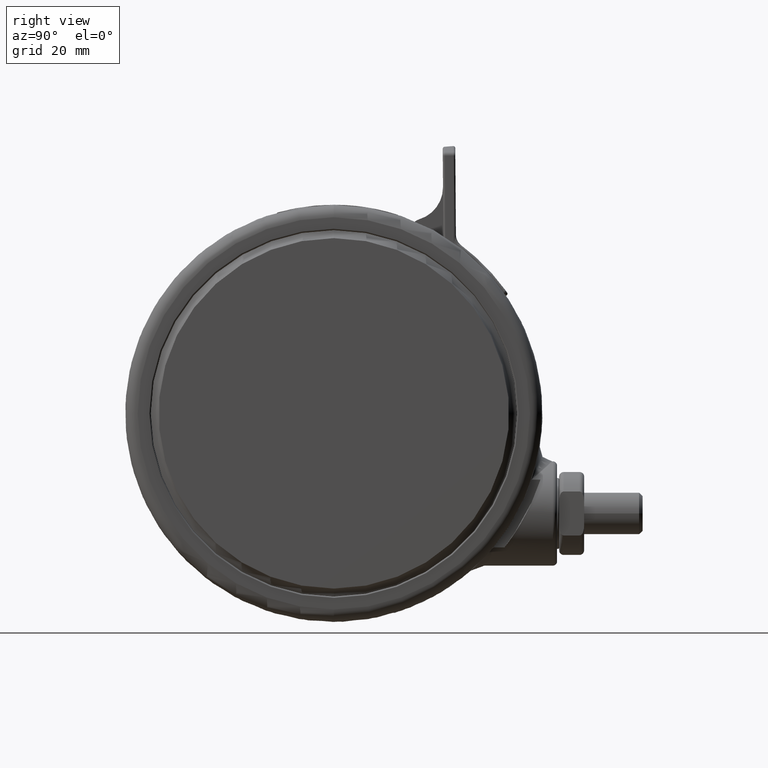
[diagram: clean part render]
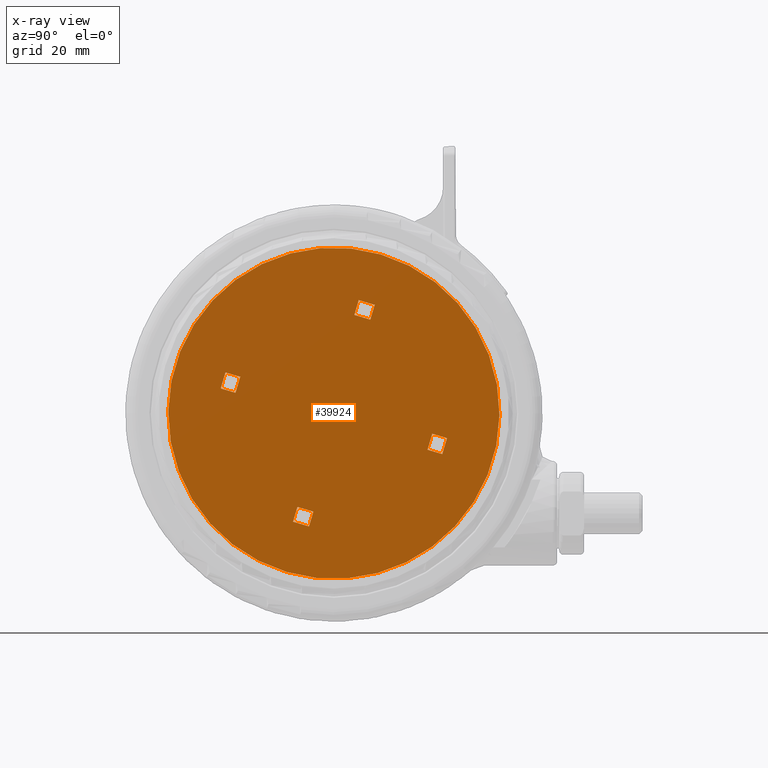
[diagram: x-ray — body ghosted, one internal face saturated and labeled with its STEP entity id]
A machine part, right view, then the same camera in x-ray: the body is ghosted and one INTERNAL B-rep face — a face not visible from any outside direction — is saturated and labeled: STEP entity #39924.
In plain terms, the highlighted planar face has unit normal (-1, 0, -0).
Its self-contained STEP definition (entity closure, byte-faithful):
#11 = EDGE_CURVE ( 'NONE', #14990, #23831, #12457, .T. ) ;
#686 = EDGE_LOOP ( 'NONE', ( #11510, #16779 ) ) ;
#1556 = VECTOR ( 'NONE', #47288, 1000.000000000000000 ) ;
#1924 = CARTESIAN_POINT ( 'NONE',  ( -25.98941694533791500, 9.789801164547872900, -46.79999999999984100 ) ) ;
#2155 = LINE ( 'NONE', #19273, #39902 ) ;
#2303 = CARTESIAN_POINT ( 'NONE',  ( 0.5683949185580011700, 1.917531542519552700, -46.79999999999984100 ) ) ;
#2382 = VECTOR ( 'NONE', #8832, 1000.000000000000000 ) ;
#2449 = CARTESIAN_POINT ( 'NONE',  ( -23.57877342879271500, 4.903207480176448900, -46.79999999999984100 ) ) ;
#2923 = VERTEX_POINT ( 'NONE', #23008 ) ;
#3072 = VECTOR ( 'NONE', #8251, 1000.000000000000000 ) ;
#4996 = VERTEX_POINT ( 'NONE', #45840 ) ;
#5125 = PLANE ( 'NONE',  #31139 ) ;
#5269 = AXIS2_PLACEMENT_3D ( 'NONE', #16384, #42740, #20143 ) ;
#5834 = CARTESIAN_POINT ( 'NONE',  ( 38.06300111901330800, -11.28263913337620200, -46.79999999999984100 ) ) ;
#6032 = DIRECTION ( 'NONE',  ( -0.9587657712597779100, 0.2841974592790074100, 1.820777459642571100E-016 ) ) ;
#6276 = VERTEX_POINT ( 'NONE', #6908 ) ;
#6908 = CARTESIAN_POINT ( 'NONE',  ( 8.738270565215499300, 22.44198359167674500, -46.79999999999984800 ) ) ;
#7834 = EDGE_CURVE ( 'NONE', #17533, #14990, #37485, .T. ) ;
#7921 = FACE_BOUND ( 'NONE', #41780, .T. ) ;
#7954 = VECTOR ( 'NONE', #27648, 1000.000000000000100 ) ;
#8251 = DIRECTION ( 'NONE',  ( -0.2841974592789973700, -0.9587657712597810200, 2.950076306839567200E-016 ) ) ;
#8383 = CARTESIAN_POINT ( 'NONE',  ( -0.5683949185580016200, -1.917531542519567400, -46.79999999999984100 ) ) ;
#8579 = EDGE_LOOP ( 'NONE', ( #9402, #48411, #25962, #44209 ) ) ;
#8832 = DIRECTION ( 'NONE',  ( 0.2841974592789973700, 0.9587657712597810200, 6.639309347787825500E-017 ) ) ;
#8960 = CARTESIAN_POINT ( 'NONE',  ( -9.789801164547789400, -25.98941694533794700, -46.79999999999984100 ) ) ;
#9402 = ORIENTED_EDGE ( 'NONE', *, *, #12400, .T. ) ;
#9699 = EDGE_CURVE ( 'NONE', #34079, #6276, #13142, .T. ) ;
#10397 = ORIENTED_EDGE ( 'NONE', *, *, #43452, .T. ) ;
#10776 = DIRECTION ( 'NONE',  ( 0.9587657712597810200, -0.2841974592789973700, -1.377383883340829000E-018 ) ) ;
#11057 = DIRECTION ( 'NONE',  ( -0.9587657712597810200, 0.2841974592789973700, 1.377383883340829000E-018 ) ) ;
#11246 = LINE ( 'NONE', #24828, #18902 ) ;
#11510 = ORIENTED_EDGE ( 'NONE', *, *, #15418, .T. ) ;
#11738 = LINE ( 'NONE', #33324, #30618 ) ;
#11758 = EDGE_CURVE ( 'NONE', #6276, #38226, #12453, .T. ) ;
#12400 = EDGE_CURVE ( 'NONE', #43203, #2923, #47733, .T. ) ;
#12453 = LINE ( 'NONE', #37598, #41304 ) ;
#12457 = LINE ( 'NONE', #46415, #2382 ) ;
#12848 = CARTESIAN_POINT ( 'NONE',  ( -4.903207480176375200, -23.57877342879274400, -46.79999999999984100 ) ) ;
#13142 = LINE ( 'NONE', #42040, #3072 ) ;
#13439 = ORIENTED_EDGE ( 'NONE', *, *, #38737, .F. ) ;
#13727 = DIRECTION ( 'NONE',  ( 0.9587657712597800200, -0.2841974592790007500, 1.793229781975770600E-016 ) ) ;
#14048 = EDGE_LOOP ( 'NONE', ( #31405, #22844, #10397, #20512 ) ) ;
#14990 = VERTEX_POINT ( 'NONE', #8960 ) ;
#15418 = EDGE_CURVE ( 'NONE', #25225, #18137, #45573, .T. ) ;
#15467 = VECTOR ( 'NONE', #31004, 1000.000000000000000 ) ;
#15673 = CARTESIAN_POINT ( 'NONE',  ( 27.12620678245384900, -5.954738079508951300, -46.79999999999984100 ) ) ;
#15826 = CARTESIAN_POINT ( 'NONE',  ( -7.872269622028227300, -26.55781186389594200, -46.79999999999984100 ) ) ;
#15927 = EDGE_CURVE ( 'NONE', #48650, #22526, #46709, .T. ) ;
#16117 = EDGE_LOOP ( 'NONE', ( #38918, #26920, #22788, #13439 ) ) ;
#16384 = CARTESIAN_POINT ( 'NONE',  ( 6.085156290360790700E-017, -7.409851091886253300E-015, -46.79999999999984100 ) ) ;
#16766 = VERTEX_POINT ( 'NONE', #27315 ) ;
#16779 = ORIENTED_EDGE ( 'NONE', *, *, #18086, .T. ) ;
#17471 = DIRECTION ( 'NONE',  ( 3.380642383533773200E-017, 2.202247500052102700E-016, 1.000000000000000000 ) ) ;
#17533 = VERTEX_POINT ( 'NONE', #39922 ) ;
#17551 = VECTOR ( 'NONE', #29117, 1000.000000000000000 ) ;
#17621 = CARTESIAN_POINT ( 'NONE',  ( -38.06300111901330800, 11.28263913337618400, -46.79999999999984100 ) ) ;
#17963 = FACE_BOUND ( 'NONE', #8579, .T. ) ;
#18086 = EDGE_CURVE ( 'NONE', #18137, #25225, #34733, .T. ) ;
#18133 = LINE ( 'NONE', #41705, #37023 ) ;
#18137 = VERTEX_POINT ( 'NONE', #17621 ) ;
#18733 = DIRECTION ( 'NONE',  ( -0.2841974592790074100, -0.9587657712597779100, 1.143072686030392600E-016 ) ) ;
#18902 = VECTOR ( 'NONE', #6032, 1000.000000000000100 ) ;
#19052 = VECTOR ( 'NONE', #36429, 1000.000000000000000 ) ;
#19133 = FACE_BOUND ( 'NONE', #16117, .T. ) ;
#19273 = CARTESIAN_POINT ( 'NONE',  ( -1.917531542519562000, 0.5683949185579876300, -46.79999999999984100 ) ) ;
#19365 = EDGE_CURVE ( 'NONE', #45657, #4996, #23438, .T. ) ;
#19744 = CARTESIAN_POINT ( 'NONE',  ( -23.57877342879271500, 4.903207480176448900, -46.79999999999984100 ) ) ;
#20060 = CARTESIAN_POINT ( 'NONE',  ( -27.12620678245390200, 5.954738079508747900, -46.79999999999984100 ) ) ;
#20143 = DIRECTION ( 'NONE',  ( 0.9587657712597810200, -0.2841974592789973700, 0.0000000000000000000 ) ) ;
#20512 = ORIENTED_EDGE ( 'NONE', *, *, #31484, .F. ) ;
#21703 = EDGE_CURVE ( 'NONE', #28695, #34079, #30094, .T. ) ;
#22526 = VERTEX_POINT ( 'NONE', #19744 ) ;
#22788 = ORIENTED_EDGE ( 'NONE', *, *, #11758, .T. ) ;
#22844 = ORIENTED_EDGE ( 'NONE', *, *, #11, .T. ) ;
#23008 = CARTESIAN_POINT ( 'NONE',  ( 25.98941694533785800, -9.789801164548073600, -46.79999999999984100 ) ) ;
#23018 = VERTEX_POINT ( 'NONE', #30441 ) ;
#23438 = LINE ( 'NONE', #2303, #32325 ) ;
#23780 = ORIENTED_EDGE ( 'NONE', *, *, #15927, .F. ) ;
#23831 = VERTEX_POINT ( 'NONE', #30056 ) ;
#24652 = CARTESIAN_POINT ( 'NONE',  ( 5.954738079508664400, 27.12620678245392000, -46.79999999999984800 ) ) ;
#24828 = CARTESIAN_POINT ( 'NONE',  ( 0.5683949185580151600, 1.917531542519548700, -46.79999999999984100 ) ) ;
#25225 = VERTEX_POINT ( 'NONE', #5834 ) ;
#25455 = CARTESIAN_POINT ( 'NONE',  ( 1.917531542519562000, -0.5683949185580023900, -46.79999999999984100 ) ) ;
#25962 = ORIENTED_EDGE ( 'NONE', *, *, #44495, .T. ) ;
#26540 = EDGE_CURVE ( 'NONE', #4996, #22526, #43247, .T. ) ;
#26886 = DIRECTION ( 'NONE',  ( -0.2841974592789973700, -0.9587657712597810200, 2.950076306839567200E-016 ) ) ;
#26920 = ORIENTED_EDGE ( 'NONE', *, *, #9699, .T. ) ;
#27315 = CARTESIAN_POINT ( 'NONE',  ( 22.44198359167667800, -8.738270565215744400, -46.79999999999984100 ) ) ;
#27648 = DIRECTION ( 'NONE',  ( 0.2841974592790074100, 0.9587657712597779100, -1.143072686030392600E-016 ) ) ;
#27726 = VECTOR ( 'NONE', #18733, 1000.000000000000100 ) ;
#27989 = FACE_BOUND ( 'NONE', #14048, .T. ) ;
#28031 = LINE ( 'NONE', #39000, #7954 ) ;
#28695 = VERTEX_POINT ( 'NONE', #24652 ) ;
#28907 = VECTOR ( 'NONE', #10776, 1000.000000000000000 ) ;
#29117 = DIRECTION ( 'NONE',  ( 0.2841974592789973700, 0.9587657712597810200, 6.639309347787825500E-017 ) ) ;
#29528 = EDGE_CURVE ( 'NONE', #43203, #23018, #11246, .T. ) ;
#30056 = CARTESIAN_POINT ( 'NONE',  ( -8.738270565215499300, -22.44198359167676000, -46.79999999999984100 ) ) ;
#30094 = LINE ( 'NONE', #33379, #28907 ) ;
#30123 = CARTESIAN_POINT ( 'NONE',  ( 15.04781476309615600, -46.70228335804925000, -46.79999999999984100 ) ) ;
#30441 = CARTESIAN_POINT ( 'NONE',  ( 23.57877342879266900, -4.903207480176623000, -46.79999999999984100 ) ) ;
#30476 = ORIENTED_EDGE ( 'NONE', *, *, #19365, .T. ) ;
#30601 = CARTESIAN_POINT ( 'NONE',  ( 4.903207480176375200, 23.57877342879273300, -46.79999999999984800 ) ) ;
#30618 = VECTOR ( 'NONE', #33168, 1000.000000000000000 ) ;
#30673 = EDGE_CURVE ( 'NONE', #48650, #45657, #11738, .T. ) ;
#30987 = VERTEX_POINT ( 'NONE', #12848 ) ;
#31004 = DIRECTION ( 'NONE',  ( 0.9587657712597800200, -0.2841974592790007500, 1.793229781975770600E-016 ) ) ;
#31008 = DIRECTION ( 'NONE',  ( -0.9587657712597810200, 0.2841974592789973700, 1.377383883340829000E-018 ) ) ;
#31139 = AXIS2_PLACEMENT_3D ( 'NONE', #31709, #42894, #35493 ) ;
#31405 = ORIENTED_EDGE ( 'NONE', *, *, #7834, .T. ) ;
#31484 = EDGE_CURVE ( 'NONE', #17533, #30987, #36421, .T. ) ;
#31692 = LINE ( 'NONE', #43668, #1556 ) ;
#31709 = CARTESIAN_POINT ( 'NONE',  ( -11.50999710079939400, -38.83001373602113700, -46.79999999999984100 ) ) ;
#32325 = VECTOR ( 'NONE', #13727, 1000.000000000000000 ) ;
#33168 = DIRECTION ( 'NONE',  ( 0.2841974592790007500, 0.9587657712597800200, -1.143072686030392300E-016 ) ) ;
#33324 = CARTESIAN_POINT ( 'NONE',  ( -38.06780896469533100, -30.95774411399290900, -46.79999999999984100 ) ) ;
#33379 = CARTESIAN_POINT ( 'NONE',  ( 7.872269622028227300, 26.55781186389592800, -46.79999999999984800 ) ) ;
#34079 = VERTEX_POINT ( 'NONE', #45326 ) ;
#34733 = CIRCLE ( 'NONE', #48964, 39.70000000000000300 ) ;
#35493 = DIRECTION ( 'NONE',  ( 0.9587657712597810200, -0.2841974592789973700, -1.377383883340829000E-018 ) ) ;
#36178 = ORIENTED_EDGE ( 'NONE', *, *, #30673, .T. ) ;
#36421 = LINE ( 'NONE', #25455, #17551 ) ;
#36429 = DIRECTION ( 'NONE',  ( -0.2841974592790007500, -0.9587657712597800200, 1.143072686030392300E-016 ) ) ;
#37023 = VECTOR ( 'NONE', #45493, 1000.000000000000100 ) ;
#37485 = LINE ( 'NONE', #15826, #48680 ) ;
#37598 = CARTESIAN_POINT ( 'NONE',  ( 4.903207480176375200, 23.57877342879273300, -46.79999999999984800 ) ) ;
#37997 = FACE_OUTER_BOUND ( 'NONE', #686, .T. ) ;
#38226 = VERTEX_POINT ( 'NONE', #30601 ) ;
#38571 = ORIENTED_EDGE ( 'NONE', *, *, #26540, .T. ) ;
#38737 = EDGE_CURVE ( 'NONE', #28695, #38226, #2155, .T. ) ;
#38918 = ORIENTED_EDGE ( 'NONE', *, *, #21703, .T. ) ;
#39000 = CARTESIAN_POINT ( 'NONE',  ( 23.57877342879266900, -4.903207480176623000, -46.79999999999984100 ) ) ;
#39902 = VECTOR ( 'NONE', #26886, 1000.000000000000000 ) ;
#39922 = CARTESIAN_POINT ( 'NONE',  ( -5.954738079508664400, -27.12620678245393400, -46.79999999999984100 ) ) ;
#39924 = ADVANCED_FACE ( 'NONE', ( #17963, #19133, #7921, #27989, #37997 ), #5125, .F. ) ;
#40022 = CARTESIAN_POINT ( 'NONE',  ( 6.085156290360790700E-017, -7.409851091886253300E-015, -46.79999999999984100 ) ) ;
#41304 = VECTOR ( 'NONE', #11057, 1000.000000000000000 ) ;
#41705 = CARTESIAN_POINT ( 'NONE',  ( -0.5683949185580142700, -1.917531542519563600, -46.79999999999984100 ) ) ;
#41780 = EDGE_LOOP ( 'NONE', ( #36178, #30476, #38571, #23780 ) ) ;
#42040 = CARTESIAN_POINT ( 'NONE',  ( 1.917531542519562000, -0.5683949185580017300, -46.79999999999984100 ) ) ;
#42740 = DIRECTION ( 'NONE',  ( 3.380642383533773200E-017, 2.202247500052102700E-016, 1.000000000000000000 ) ) ;
#42894 = DIRECTION ( 'NONE',  ( -6.405764716563957100E-017, -2.112576789350188500E-016, -1.000000000000000000 ) ) ;
#43138 = EDGE_CURVE ( 'NONE', #2923, #16766, #18133, .T. ) ;
#43203 = VERTEX_POINT ( 'NONE', #15673 ) ;
#43247 = LINE ( 'NONE', #2449, #19052 ) ;
#43452 = EDGE_CURVE ( 'NONE', #23831, #30987, #31692, .T. ) ;
#43668 = CARTESIAN_POINT ( 'NONE',  ( -4.903207480176375200, -23.57877342879274400, -46.79999999999984100 ) ) ;
#43826 = DIRECTION ( 'NONE',  ( 0.9587657712597810200, -0.2841974592789973700, 0.0000000000000000000 ) ) ;
#44209 = ORIENTED_EDGE ( 'NONE', *, *, #29528, .F. ) ;
#44495 = EDGE_CURVE ( 'NONE', #16766, #23018, #28031, .T. ) ;
#45326 = CARTESIAN_POINT ( 'NONE',  ( 9.789801164547789400, 25.98941694533793300, -46.79999999999984800 ) ) ;
#45493 = DIRECTION ( 'NONE',  ( -0.9587657712597779100, 0.2841974592790074100, 1.820777459642571100E-016 ) ) ;
#45573 = CIRCLE ( 'NONE', #5269, 39.70000000000000300 ) ;
#45657 = VERTEX_POINT ( 'NONE', #1924 ) ;
#45840 = CARTESIAN_POINT ( 'NONE',  ( -22.44198359167672800, 8.738270565215572100, -46.79999999999984100 ) ) ;
#46415 = CARTESIAN_POINT ( 'NONE',  ( -1.917531542519562000, 0.5683949185579869600, -46.79999999999984100 ) ) ;
#46709 = LINE ( 'NONE', #8383, #15467 ) ;
#47288 = DIRECTION ( 'NONE',  ( 0.9587657712597810200, -0.2841974592789973700, -1.377383883340829000E-018 ) ) ;
#47733 = LINE ( 'NONE', #30123, #27726 ) ;
#48411 = ORIENTED_EDGE ( 'NONE', *, *, #43138, .T. ) ;
#48650 = VERTEX_POINT ( 'NONE', #20060 ) ;
#48680 = VECTOR ( 'NONE', #31008, 1000.000000000000000 ) ;
#48964 = AXIS2_PLACEMENT_3D ( 'NONE', #40022, #17471, #43826 ) ;